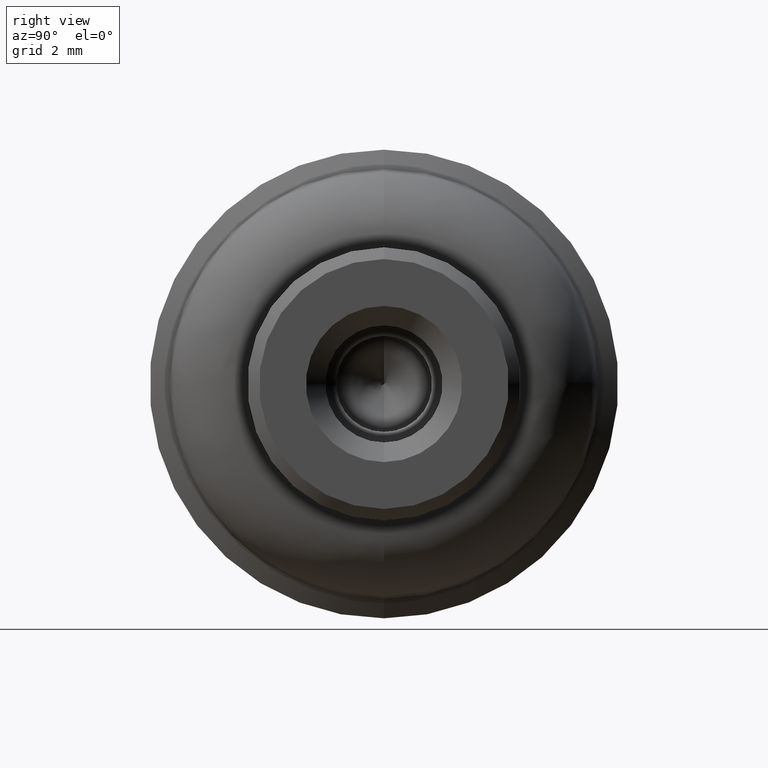
[diagram: clean part render]
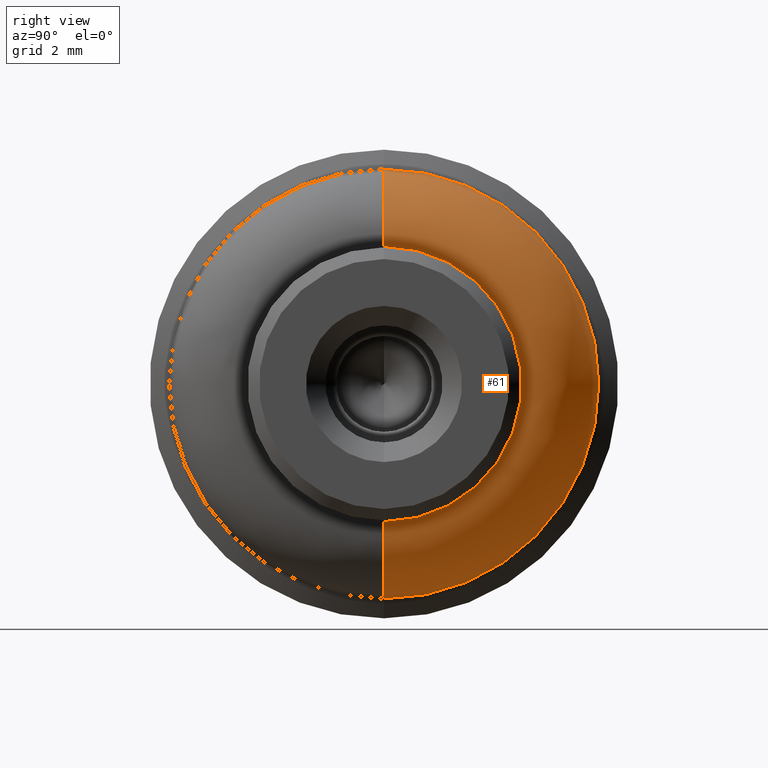
[diagram: same view with one face highlighted and labeled with its STEP entity id]
A machine part, right view. The second image highlights one B-rep face of the part: STEP entity #61.
In plain terms, the highlighted face is a freeform B-spline surface patch.
Its self-contained STEP definition (entity closure, byte-faithful):
#61=ADVANCED_FACE('',(#284),#283,.T.);
#283=( BOUNDED_SURFACE() B_SPLINE_SURFACE( 2,2,((#550,#551,#552,#553,#554),(#555,#556,#557,#558,#559),(#560,#561,#562,#563,#564),(#565,#566,#567,#568,#569),(#570,#571,#572,#573,#574)), .UNSPECIFIED.,.F.,.F.,.F.) B_SPLINE_SURFACE_WITH_KNOTS((3,2,3),(3,2,3),(0.00000000000E+00,5.00000000000E-01,1.00000000000E+00),(0.00000000000E+00,5.00000000000E-01,1.00000000000E+00), .UNSPECIFIED. ) GEOMETRIC_REPRESENTATION_ITEM() RATIONAL_B_SPLINE_SURFACE(((1.00000000000E+00,7.58287962218E-01,1.00000000000E+00,7.58287962218E-01,1.00000000000E+00),(7.07106781187E-01,5.36190560177E-01,7.07106781187E-01,5.36190560177E-01,7.07106781187E-01),(1.00000000000E+00,7.58287962218E-01,1.00000000000E+00,7.58287962218E-01,1.00000000000E+00),(7.07106781187E-01,5.36190560177E-01,7.07106781187E-01,5.36190560177E-01,7.07106781187E-01),(1.00000000000E+00,7.58287962218E-01,1.00000000000E+00,7.58287962218E-01,1.00000000000E+00))) REPRESENTATION_ITEM('') SURFACE() );
#284=FACE_OUTER_BOUND('',#575,.T.);
#550=CARTESIAN_POINT('',(-4.19999746542E+00,-6.25013089771E-21,1.54532839121E+00));
#551=CARTESIAN_POINT('',(-2.50000000000E+00,-7.29329643941E-21,1.80324832196E+00));
#552=CARTESIAN_POINT('',(-2.50000000000E+00,-1.42476746293E-20,3.52270000000E+00));
#553=CARTESIAN_POINT('',(-2.50000000000E+00,-2.12020528191E-20,5.24215167804E+00));
#554=CARTESIAN_POINT('',(-4.19999746542E+00,-2.22452183608E-20,5.50007160879E+00));
#555=CARTESIAN_POINT('',(-4.19999746542E+00,1.54532839121E+00,1.54532839121E+00));
#556=CARTESIAN_POINT('',(-2.50000000000E+00,1.80324832196E+00,1.80324832196E+00));
#557=CARTESIAN_POINT('',(-2.50000000000E+00,3.52270000000E+00,3.52270000000E+00));
#558=CARTESIAN_POINT('',(-2.50000000000E+00,5.24215167804E+00,5.24215167804E+00));
#559=CARTESIAN_POINT('',(-4.19999746542E+00,5.50007160879E+00,5.50007160879E+00));
#560=CARTESIAN_POINT('',(-4.19999746542E+00,1.54532839121E+00,9.46303235273E-17));
#561=CARTESIAN_POINT('',(-2.50000000000E+00,1.80324832196E+00,1.10424407574E-16));
#562=CARTESIAN_POINT('',(-2.50000000000E+00,3.52270000000E+00,2.15717411642E-16));
#563=CARTESIAN_POINT('',(-2.50000000000E+00,5.24215167804E+00,3.21010415711E-16));
#564=CARTESIAN_POINT('',(-4.19999746542E+00,5.50007160879E+00,3.36804499758E-16));
#565=CARTESIAN_POINT('',(-4.19999746542E+00,1.54532839121E+00,-1.54532839121E+00));
#566=CARTESIAN_POINT('',(-2.50000000000E+00,1.80324832196E+00,-1.80324832196E+00));
#567=CARTESIAN_POINT('',(-2.50000000000E+00,3.52270000000E+00,-3.52270000000E+00));
#568=CARTESIAN_POINT('',(-2.50000000000E+00,5.24215167804E+00,-5.24215167804E+00));
#569=CARTESIAN_POINT('',(-4.19999746542E+00,5.50007160879E+00,-5.50007160879E+00));
#570=CARTESIAN_POINT('',(-4.19999746542E+00,1.89254396924E-16,-1.54532839121E+00));
#571=CARTESIAN_POINT('',(-2.50000000000E+00,2.20841521852E-16,-1.80324832196E+00));
#572=CARTESIAN_POINT('',(-2.50000000000E+00,4.31420575610E-16,-3.52270000000E+00));
#573=CARTESIAN_POINT('',(-2.50000000000E+00,6.41999629368E-16,-5.24215167804E+00));
#574=CARTESIAN_POINT('',(-4.19999746542E+00,6.73586754297E-16,-5.50007160879E+00));
#575=EDGE_LOOP('',(#762,#763,#764,#765));
#762=ORIENTED_EDGE('',*,*,#809,.T.);
#763=ORIENTED_EDGE('',*,*,#839,.T.);
#764=ORIENTED_EDGE('',*,*,#841,.F.);
#765=ORIENTED_EDGE('',*,*,#840,.F.);
#809=EDGE_CURVE('',#927,#926,#934,.T.);
#839=EDGE_CURVE('',#926,#1121,#1129,.T.);
#840=EDGE_CURVE('',#927,#1122,#1135,.T.);
#841=EDGE_CURVE('',#1122,#1121,#1141,.T.);
#926=VERTEX_POINT('',#1287);
#927=VERTEX_POINT('',#1288);
#934=CIRCLE('',#1296,3.52270000000E+00);
#1121=VERTEX_POINT('',#1390);
#1122=VERTEX_POINT('',#1391);
#1129=(BOUNDED_CURVE() B_SPLINE_CURVE(2,(#1396,#1397,#1398),.UNSPECIFIED.,.F.,.F.) B_SPLINE_CURVE_WITH_KNOTS((3,3),(5.00000000000E-01,1.00000000000E+00),.UNSPECIFIED.) CURVE() GEOMETRIC_REPRESENTATION_ITEM() RATIONAL_B_SPLINE_CURVE((1.00000000000E+00,7.58287962218E-01,1.00000000000E+00)) REPRESENTATION_ITEM('') );
#1135=(BOUNDED_CURVE() B_SPLINE_CURVE(3,(#1399,#1400,#1401,#1402,#1403),.UNSPECIFIED.,.F.,.F.) B_SPLINE_CURVE_WITH_KNOTS((4,1,4),(4.99999340689E-01,7.49999629352E-01,1.00000000000E+00),.UNSPECIFIED.) CURVE() GEOMETRIC_REPRESENTATION_ITEM() RATIONAL_B_SPLINE_CURVE((1.00000000000E+00,1.00000000000E+00,1.00000000000E+00,1.00000000000E+00,1.00000000000E+00)) REPRESENTATION_ITEM('') );
#1141=CIRCLE('',#1407,5.50007160879E+00);
#1287=CARTESIAN_POINT('',(-2.50000000000E+00,1.48029736617E-16,-3.52270000000E+00));
#1288=CARTESIAN_POINT('',(-2.50000000000E+00,0.00000000000E+00,3.52270000000E+00));
#1293=CARTESIAN_POINT('',(-2.50000000000E+00,0.00000000000E+00,0.00000000000E+00));
#1294=DIRECTION('',(-1.00000000000E+00,0.00000000000E+00,0.00000000000E+00));
#1295=DIRECTION('',(0.00000000000E+00,-1.22460635382E-16,1.00000000000E+00));
#1296=AXIS2_PLACEMENT_3D('',#1293,#1294,#1295);
#1390=CARTESIAN_POINT('',(-4.19999746542E+00,2.96059473233E-16,-5.50007160879E+00));
#1391=CARTESIAN_POINT('',(-4.19999746542E+00,0.00000000000E+00,5.50007160879E+00));
#1396=CARTESIAN_POINT('',(-2.50000000000E+00,-4.31392080261E-16,-3.52270000000E+00));
#1397=CARTESIAN_POINT('',(-2.50000000000E+00,-6.41957225263E-16,-5.24215167804E+00));
#1398=CARTESIAN_POINT('',(-4.19999746542E+00,-6.73542263860E-16,-5.50007160879E+00));
#1399=CARTESIAN_POINT('',(-2.50000000000E+00,2.96059271567E-16,3.52269656145E+00));
#1400=CARTESIAN_POINT('',(-2.49704872255E+00,4.82712143179E-16,3.99252617995E+00));
#1401=CARTESIAN_POINT('',(-2.85080101353E+00,7.56521865073E-16,4.94055637841E+00));
#1402=CARTESIAN_POINT('',(-3.73504085900E+00,6.98313719524E-16,5.43251364005E+00));
#1403=CARTESIAN_POINT('',(-4.19999746542E+00,5.92118946467E-16,5.50007160879E+00));
#1404=CARTESIAN_POINT('',(-4.19999746542E+00,0.00000000000E+00,0.00000000000E+00));
#1405=DIRECTION('',(-1.00000000000E+00,0.00000000000E+00,0.00000000000E+00));
#1406=DIRECTION('',(0.00000000000E+00,-1.22460635382E-16,1.00000000000E+00));
#1407=AXIS2_PLACEMENT_3D('',#1404,#1405,#1406);